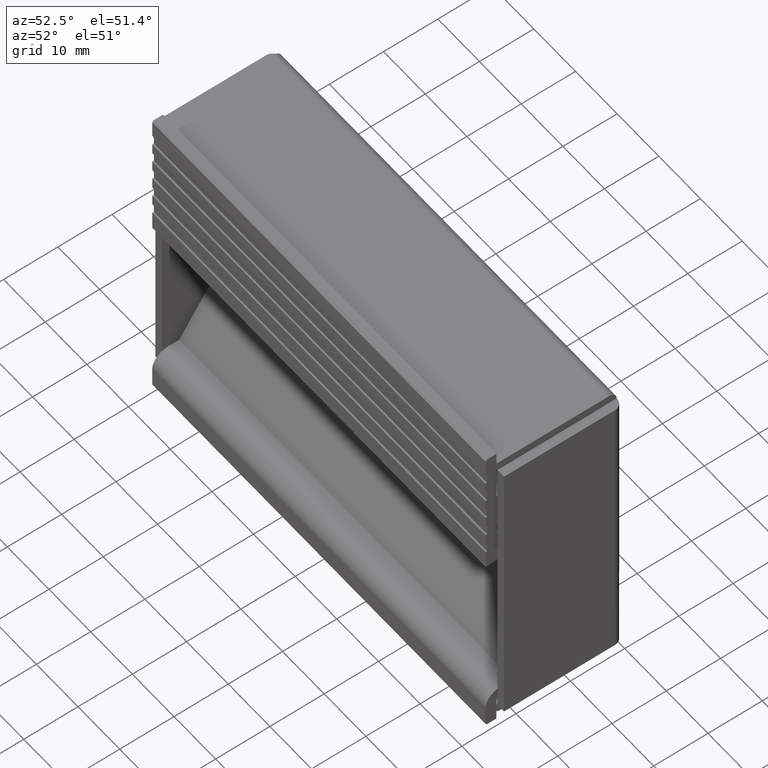
[diagram: clean part render]
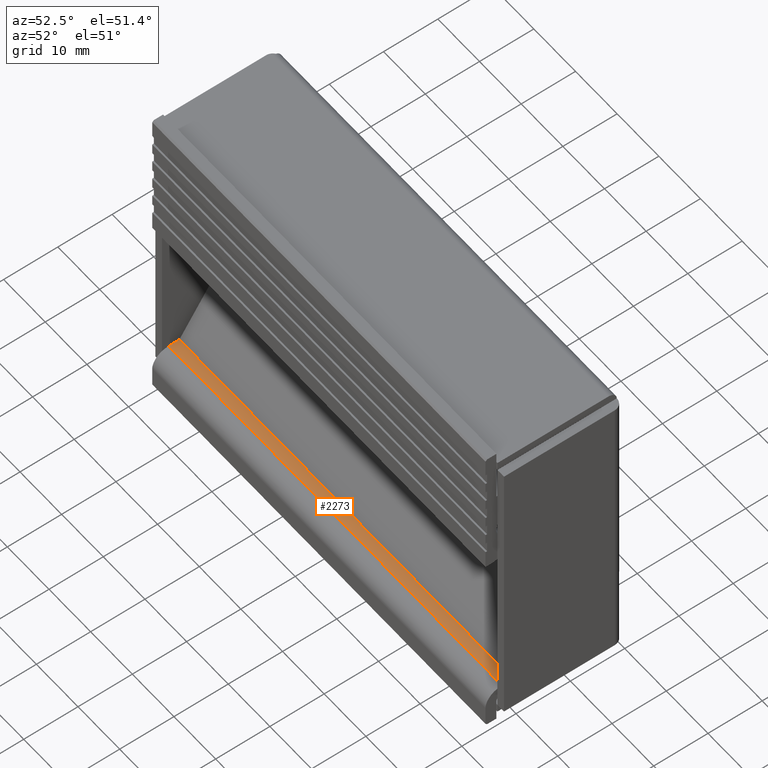
[diagram: same view with one face highlighted and labeled with its STEP entity id]
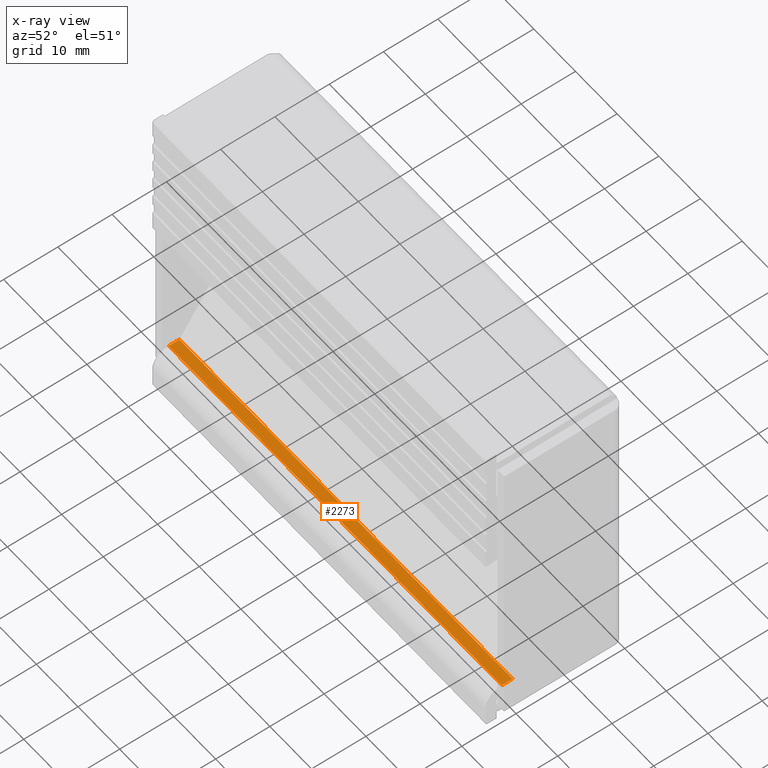
[diagram: x-ray of the same camera — body ghosted, the highlighted face saturated]
A machine part, auxiliary view. The second image highlights one B-rep face of the part: STEP entity #2273.
The next image is the same camera in x-ray: the body ghosted, the highlighted face saturated — about 0% of this face is hidden behind the body in this view.
In plain terms, the highlighted face is a freeform B-spline surface patch.
Its self-contained STEP definition (entity closure, byte-faithful):
#1262=CARTESIAN_POINT('',(40.0,3.000000000000085,7.0));
#1263=VERTEX_POINT('',#1262);
#1269=CARTESIAN_POINT('',(40.0,1.0,7.0));
#1270=VERTEX_POINT('',#1269);
#1271=CARTESIAN_POINT('',(40.0,3.000000000000085,7.0));
#1272=CARTESIAN_POINT('',(40.0,1.0,7.0));
#1273=QUASI_UNIFORM_CURVE('',1,(#1271,#1272),.UNSPECIFIED.,.F.,.U.);
#1274=EDGE_CURVE('',#1263,#1270,#1273,.T.);
#1454=CARTESIAN_POINT('',(-40.0,1.0,7.0));
#1455=VERTEX_POINT('',#1454);
#1469=CARTESIAN_POINT('',(-40.0,3.000000000000085,7.0));
#1470=VERTEX_POINT('',#1469);
#1471=CARTESIAN_POINT('',(-40.0,3.000000000000085,7.0));
#1472=CARTESIAN_POINT('',(-40.0,1.0,7.0));
#1473=QUASI_UNIFORM_CURVE('',1,(#1471,#1472),.UNSPECIFIED.,.F.,.U.);
#1474=EDGE_CURVE('',#1470,#1455,#1473,.T.);
#2248=CARTESIAN_POINT('',(-40.0,1.0,7.0));
#2249=CARTESIAN_POINT('',(40.0,1.0,7.0));
#2250=QUASI_UNIFORM_CURVE('',1,(#2248,#2249),.UNSPECIFIED.,.F.,.U.);
#2251=EDGE_CURVE('',#1455,#1270,#2250,.T.);
#2258=CARTESIAN_POINT('',(-43.995999844944478,0.900100003876384,7.0));
#2259=CARTESIAN_POINT('',(43.996001990711690,0.900100003876384,7.0));
#2260=CARTESIAN_POINT('',(-43.995999844944478,3.099900049767882,7.0));
#2261=CARTESIAN_POINT('',(43.996001990711690,3.099900049767882,7.0));
#2262=B_SPLINE_SURFACE_WITH_KNOTS('',1,1,((#2258,#2260),(#2259,#2261)),.UNSPECIFIED.,.F.,.F.,.U.,(2,2),(2,2),(0.0,87.992001835656168),(0.0,2.199800045891498),.UNSPECIFIED.);
#2263=ORIENTED_EDGE('',*,*,#1274,.F.);
#2264=CARTESIAN_POINT('',(-40.0,3.000000000000085,7.0));
#2265=CARTESIAN_POINT('',(40.0,3.000000000000085,7.0));
#2266=QUASI_UNIFORM_CURVE('',1,(#2264,#2265),.UNSPECIFIED.,.F.,.U.);
#2267=EDGE_CURVE('',#1470,#1263,#2266,.T.);
#2268=ORIENTED_EDGE('',*,*,#2267,.F.);
#2269=ORIENTED_EDGE('',*,*,#1474,.T.);
#2270=ORIENTED_EDGE('',*,*,#2251,.T.);
#2271=EDGE_LOOP('',(#2263,#2268,#2269,#2270));
#2272=FACE_OUTER_BOUND('',#2271,.T.);
#2273=ADVANCED_FACE('',(#2272),#2262,.T.);